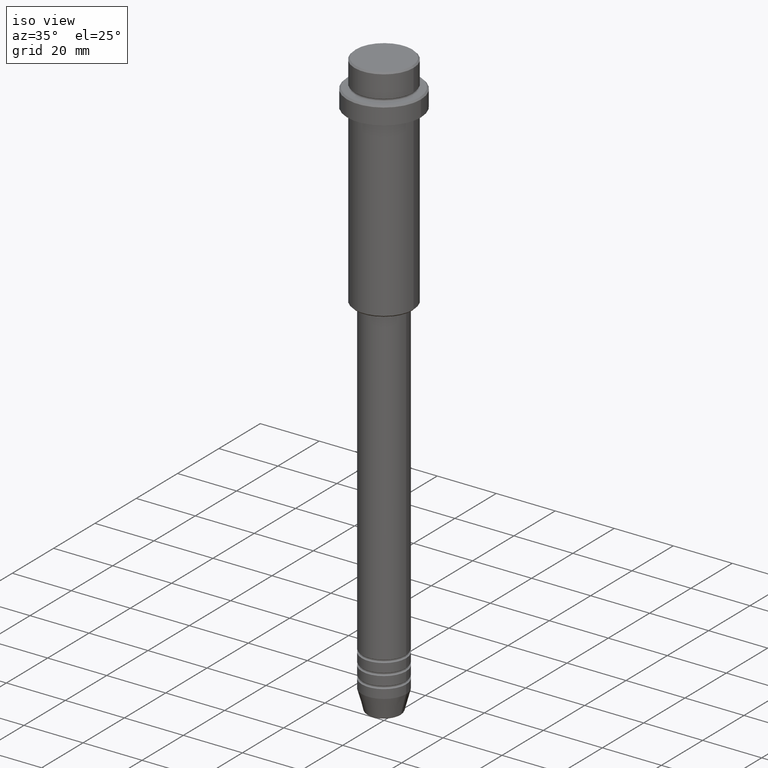
[diagram: clean part render]
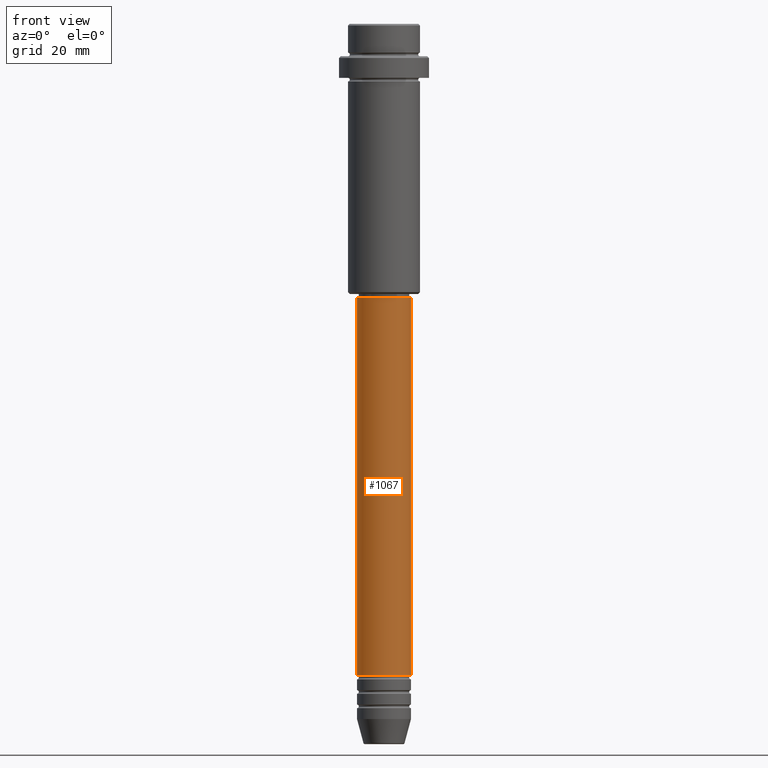
[diagram: tour spotlight — one face highlighted and labeled with its STEP entity id]
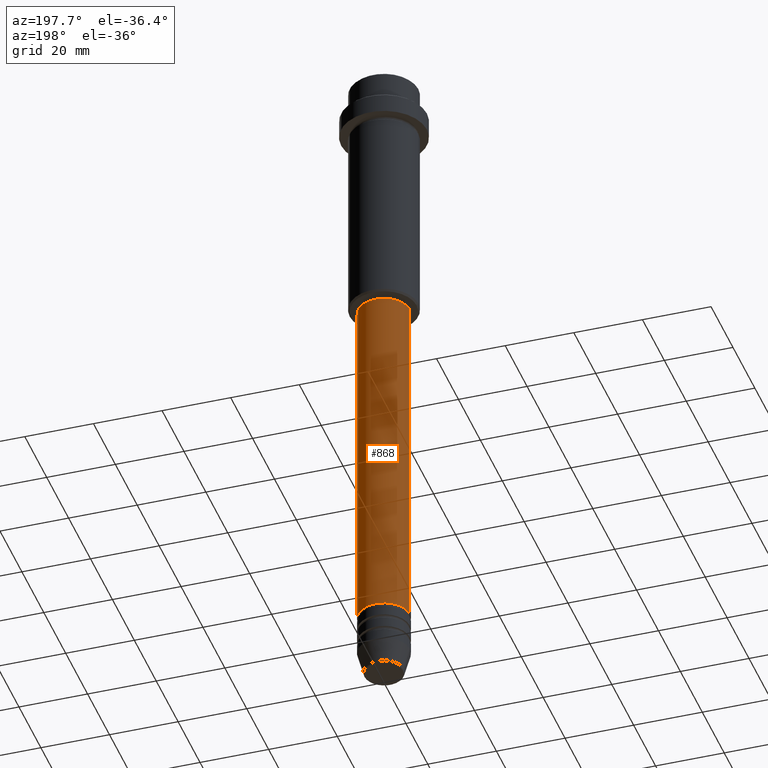
[diagram: tour spotlight — one face highlighted and labeled with its STEP entity id]
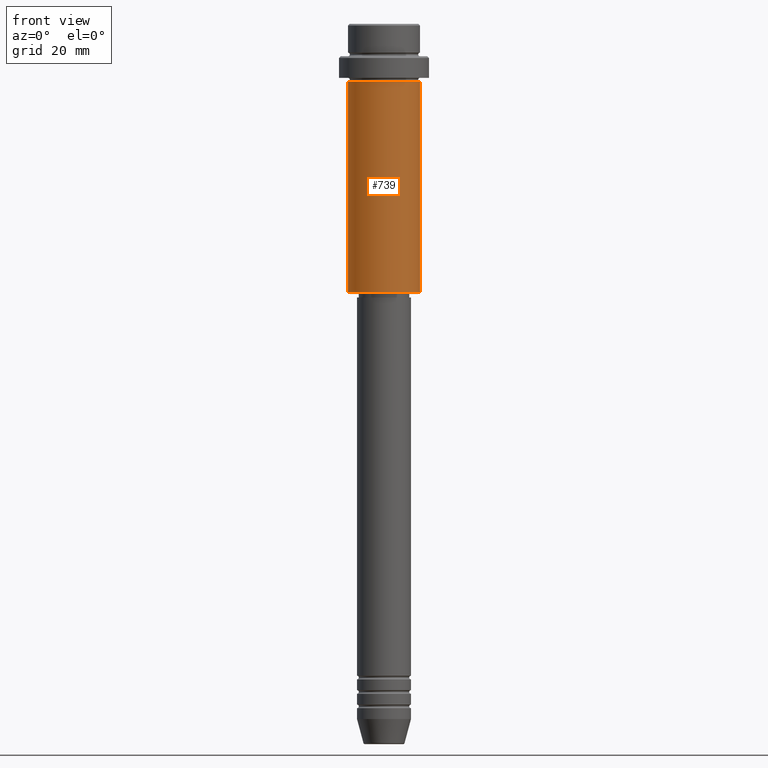
[diagram: tour spotlight — one face highlighted and labeled with its STEP entity id]
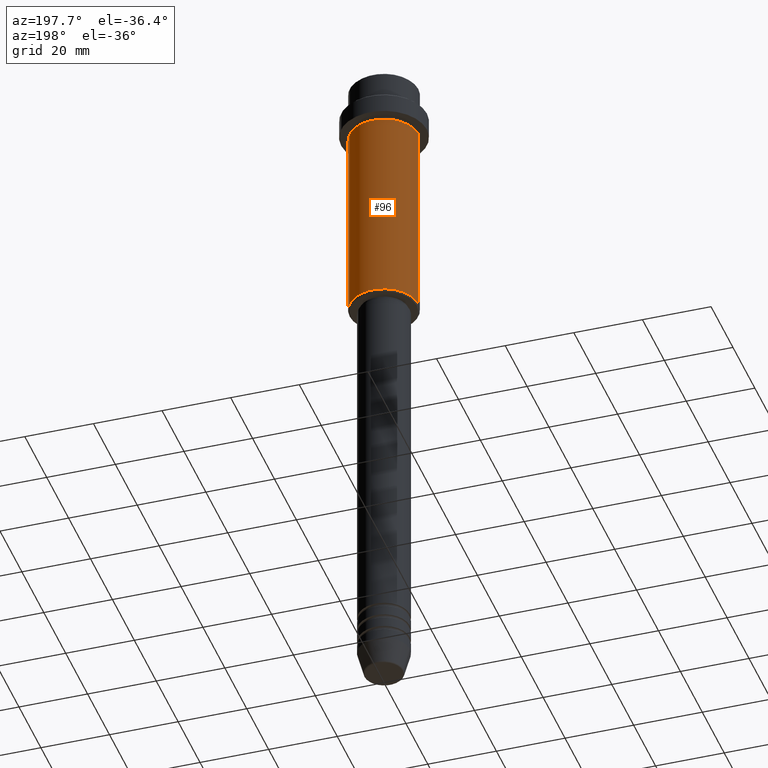
[diagram: tour spotlight — one face highlighted and labeled with its STEP entity id]
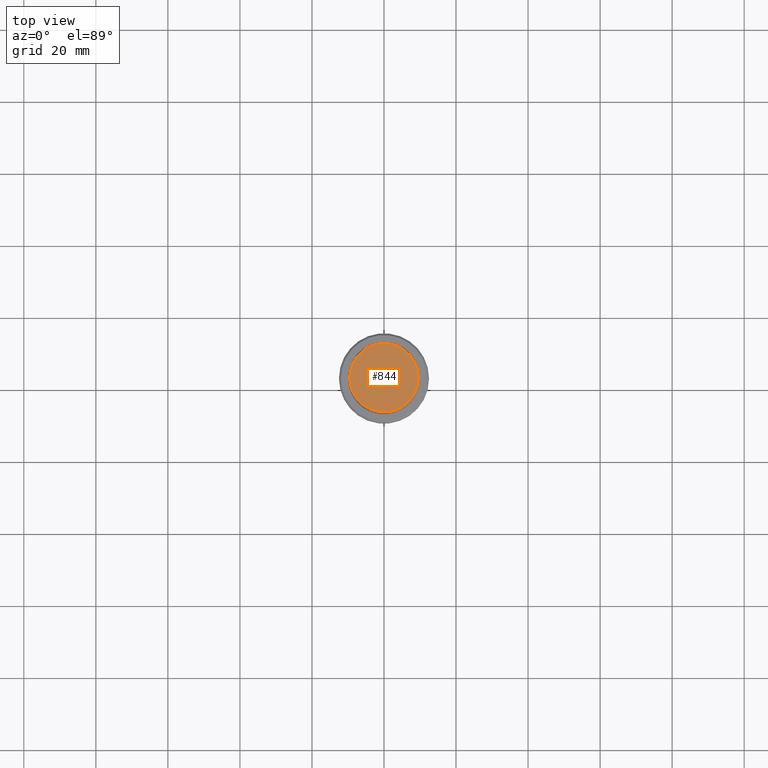
[diagram: tour spotlight — one face highlighted and labeled with its STEP entity id]
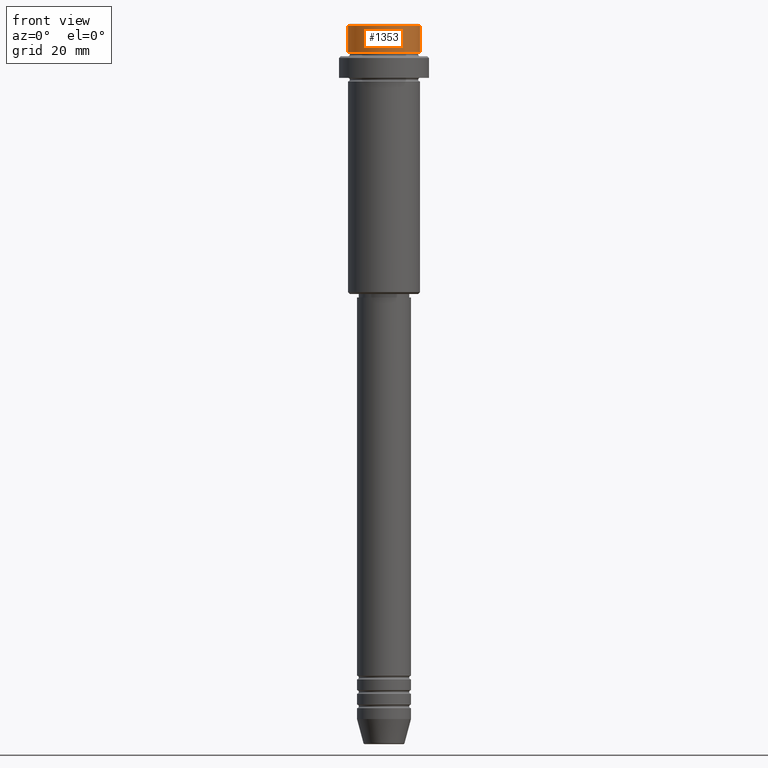
[diagram: tour spotlight — one face highlighted and labeled with its STEP entity id]
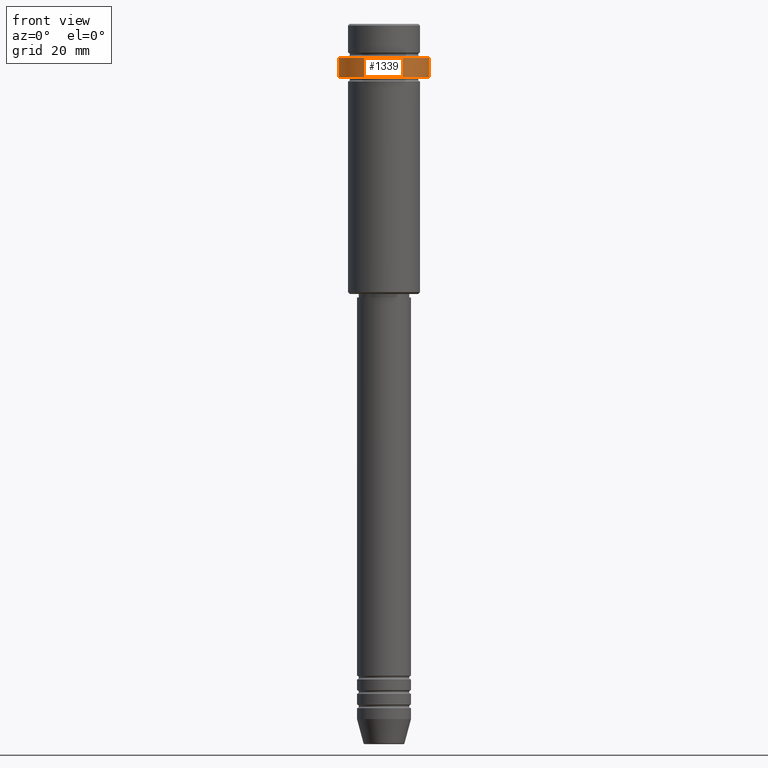
[diagram: tour spotlight — one face highlighted and labeled with its STEP entity id]
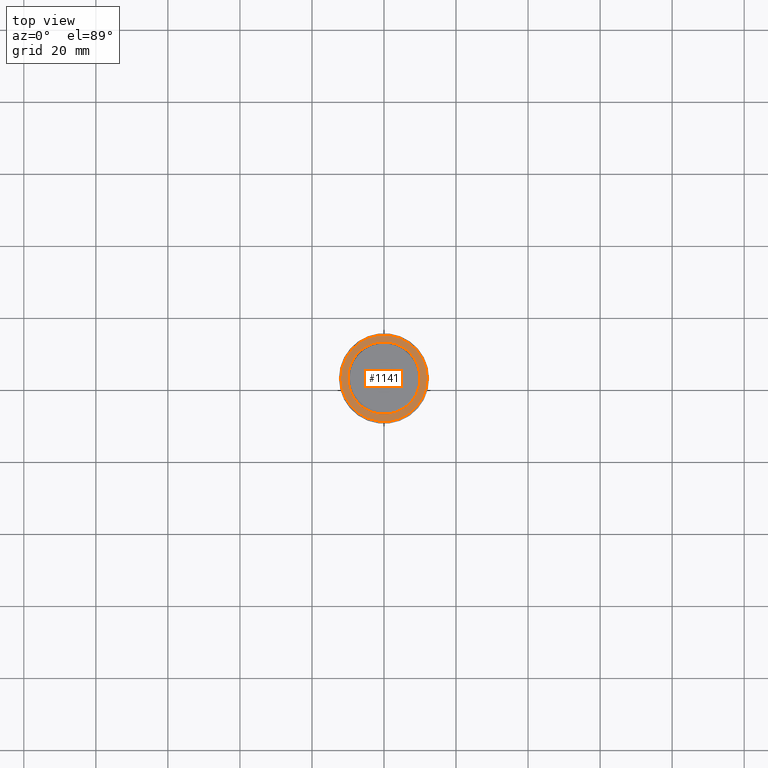
[diagram: tour spotlight — one face highlighted and labeled with its STEP entity id]
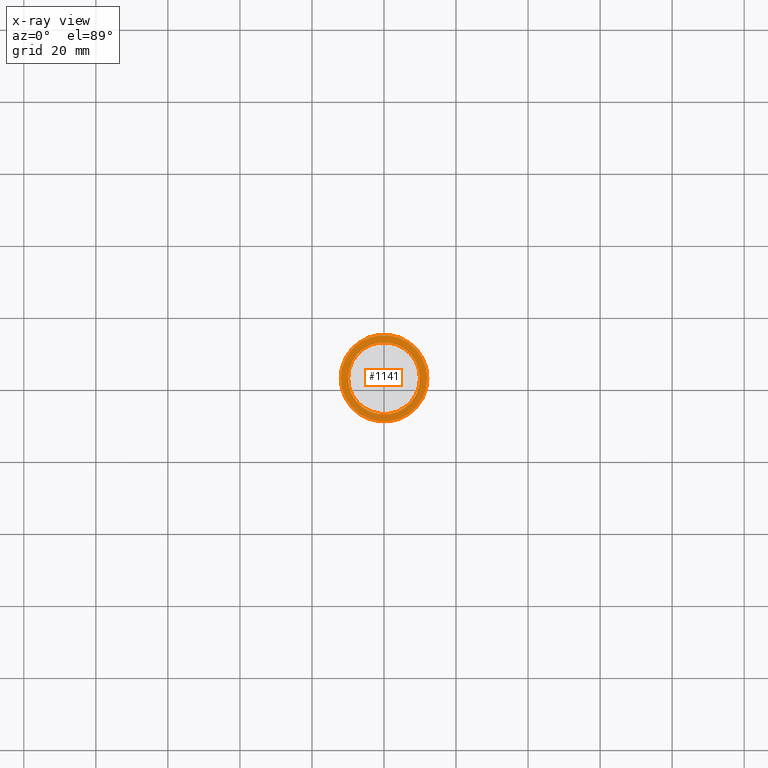
[diagram: x-ray of the same camera — body ghosted, this tour face saturated]
A machine part: a face-by-face anatomy tour. The part has 52 B-rep faces; the first image is the clean iso view, then the 8 largest visible faces are spotlighted one at a time (largest first), each with its STEP entity span.

Face 1 — front view, entity #1067. In plain terms, the highlighted cylindrical surface (edge-blend (fillet) strip) has radius 7.5 mm, axis along (-0, -0, 1).
Definition (entity closure, byte-faithful):
#12 = AXIS2_PLACEMENT_3D ( 'NONE', #493, #507, #928 ) ;
#13 = ORIENTED_EDGE ( 'NONE', *, *, #1210, .F. ) ;
#117 = VERTEX_POINT ( 'NONE', #1283 ) ;
#132 = EDGE_CURVE ( 'NONE', #1027, #117, #1355, .T. ) ;
#168 = CARTESIAN_POINT ( 'NONE',  ( 0.000000000000000000, 0.000000000000000000, -180.9999999999998863 ) ) ;
#178 = DIRECTION ( 'NONE',  ( 1.000000000000000000, 0.000000000000000000, 0.000000000000000000 ) ) ;
#197 = AXIS2_PLACEMENT_3D ( 'NONE', #427, #420, #1371 ) ;
#210 = LINE ( 'NONE', #325, #1247 ) ;
#220 = CARTESIAN_POINT ( 'NONE',  ( -7.500000000000000000, 9.184850993605147944E-16, -76.00000000000001421 ) ) ;
#288 = VERTEX_POINT ( 'NONE', #1304 ) ;
#312 = ORIENTED_EDGE ( 'NONE', *, *, #917, .F. ) ;
#325 = CARTESIAN_POINT ( 'NONE',  ( -7.500000000000000000, 9.184850993605147944E-16, 0.000000000000000000 ) ) ;
#345 = CARTESIAN_POINT ( 'NONE',  ( 7.500000000000000000, 0.000000000000000000, 0.000000000000000000 ) ) ;
#347 = VERTEX_POINT ( 'NONE', #220 ) ;
#420 = DIRECTION ( 'NONE',  ( -0.000000000000000000, -0.000000000000000000, 1.000000000000000000 ) ) ;
#427 = CARTESIAN_POINT ( 'NONE',  ( 0.000000000000000000, 0.000000000000000000, 0.000000000000000000 ) ) ;
#436 = LINE ( 'NONE', #345, #1130 ) ;
#493 = CARTESIAN_POINT ( 'NONE',  ( 0.000000000000000000, 0.000000000000000000, -76.00000000000001421 ) ) ;
#507 = DIRECTION ( 'NONE',  ( -0.000000000000000000, -0.000000000000000000, 1.000000000000000000 ) ) ;
#613 = FACE_OUTER_BOUND ( 'NONE', #1351, .T. ) ;
#716 = AXIS2_PLACEMENT_3D ( 'NONE', #168, #1154, #178 ) ;
#867 = DIRECTION ( 'NONE',  ( -0.000000000000000000, -0.000000000000000000, 1.000000000000000000 ) ) ;
#881 = CIRCLE ( 'NONE', #12, 7.500000000000000000 ) ;
#898 = ORIENTED_EDGE ( 'NONE', *, *, #132, .T. ) ;
#917 = EDGE_CURVE ( 'NONE', #347, #288, #881, .T. ) ;
#928 = DIRECTION ( 'NONE',  ( 1.000000000000000000, 0.000000000000000000, 0.000000000000000000 ) ) ;
#937 = CYLINDRICAL_SURFACE ( 'NONE', #197, 7.500000000000000000 ) ;
#961 = CARTESIAN_POINT ( 'NONE',  ( -7.500000000000000000, 9.184850993605147944E-16, -180.9999999999998863 ) ) ;
#1027 = VERTEX_POINT ( 'NONE', #961 ) ;
#1067 = ADVANCED_FACE ( 'NONE', ( #613 ), #937, .T. ) ;
#1130 = VECTOR ( 'NONE', #867, 1000.000000000000000 ) ;
#1154 = DIRECTION ( 'NONE',  ( -0.000000000000000000, -0.000000000000000000, 1.000000000000000000 ) ) ;
#1164 = EDGE_CURVE ( 'NONE', #117, #288, #436, .T. ) ;
#1210 = EDGE_CURVE ( 'NONE', #1027, #347, #210, .T. ) ;
#1239 = ORIENTED_EDGE ( 'NONE', *, *, #1164, .T. ) ;
#1247 = VECTOR ( 'NONE', #1296, 1000.000000000000000 ) ;
#1283 = CARTESIAN_POINT ( 'NONE',  ( 7.500000000000000000, 0.000000000000000000, -180.9999999999998863 ) ) ;
#1296 = DIRECTION ( 'NONE',  ( -0.000000000000000000, -0.000000000000000000, 1.000000000000000000 ) ) ;
#1304 = CARTESIAN_POINT ( 'NONE',  ( 7.500000000000000000, 0.000000000000000000, -76.00000000000001421 ) ) ;
#1351 = EDGE_LOOP ( 'NONE', ( #13, #898, #1239, #312 ) ) ;
#1355 = CIRCLE ( 'NONE', #716, 7.500000000000000000 ) ;
#1371 = DIRECTION ( 'NONE',  ( 1.000000000000000000, 0.000000000000000000, 0.000000000000000000 ) ) ;

Face 2 — auxiliary view, entity #868. In plain terms, the highlighted cylindrical surface (edge-blend (fillet) strip) has radius 7.5 mm, axis along (-0, -0, 1).
Definition (entity closure, byte-faithful):
#24 = ORIENTED_EDGE ( 'NONE', *, *, #1210, .T. ) ;
#117 = VERTEX_POINT ( 'NONE', #1283 ) ;
#160 = FACE_OUTER_BOUND ( 'NONE', #333, .T. ) ;
#174 = CARTESIAN_POINT ( 'NONE',  ( 0.000000000000000000, 0.000000000000000000, -180.9999999999998863 ) ) ;
#210 = LINE ( 'NONE', #325, #1247 ) ;
#220 = CARTESIAN_POINT ( 'NONE',  ( -7.500000000000000000, 9.184850993605147944E-16, -76.00000000000001421 ) ) ;
#234 = ORIENTED_EDGE ( 'NONE', *, *, #1164, .F. ) ;
#236 = DIRECTION ( 'NONE',  ( -0.000000000000000000, -0.000000000000000000, 1.000000000000000000 ) ) ;
#288 = VERTEX_POINT ( 'NONE', #1304 ) ;
#325 = CARTESIAN_POINT ( 'NONE',  ( -7.500000000000000000, 9.184850993605147944E-16, 0.000000000000000000 ) ) ;
#333 = EDGE_LOOP ( 'NONE', ( #818, #24, #1021, #234 ) ) ;
#345 = CARTESIAN_POINT ( 'NONE',  ( 7.500000000000000000, 0.000000000000000000, 0.000000000000000000 ) ) ;
#347 = VERTEX_POINT ( 'NONE', #220 ) ;
#436 = LINE ( 'NONE', #345, #1130 ) ;
#464 = DIRECTION ( 'NONE',  ( 1.000000000000000000, 0.000000000000000000, 0.000000000000000000 ) ) ;
#491 = AXIS2_PLACEMENT_3D ( 'NONE', #1214, #236, #966 ) ;
#546 = EDGE_CURVE ( 'NONE', #117, #1027, #809, .T. ) ;
#601 = CIRCLE ( 'NONE', #491, 7.500000000000000000 ) ;
#605 = DIRECTION ( 'NONE',  ( 1.000000000000000000, 0.000000000000000000, 0.000000000000000000 ) ) ;
#679 = EDGE_CURVE ( 'NONE', #288, #347, #601, .T. ) ;
#728 = DIRECTION ( 'NONE',  ( -0.000000000000000000, -0.000000000000000000, 1.000000000000000000 ) ) ;
#782 = DIRECTION ( 'NONE',  ( -0.000000000000000000, -0.000000000000000000, 1.000000000000000000 ) ) ;
#809 = CIRCLE ( 'NONE', #1017, 7.500000000000000000 ) ;
#818 = ORIENTED_EDGE ( 'NONE', *, *, #546, .T. ) ;
#867 = DIRECTION ( 'NONE',  ( -0.000000000000000000, -0.000000000000000000, 1.000000000000000000 ) ) ;
#868 = ADVANCED_FACE ( 'NONE', ( #160 ), #1328, .T. ) ;
#903 = AXIS2_PLACEMENT_3D ( 'NONE', #1012, #782, #464 ) ;
#961 = CARTESIAN_POINT ( 'NONE',  ( -7.500000000000000000, 9.184850993605147944E-16, -180.9999999999998863 ) ) ;
#966 = DIRECTION ( 'NONE',  ( 1.000000000000000000, 0.000000000000000000, 0.000000000000000000 ) ) ;
#1012 = CARTESIAN_POINT ( 'NONE',  ( 0.000000000000000000, 0.000000000000000000, 0.000000000000000000 ) ) ;
#1017 = AXIS2_PLACEMENT_3D ( 'NONE', #174, #728, #605 ) ;
#1021 = ORIENTED_EDGE ( 'NONE', *, *, #679, .F. ) ;
#1027 = VERTEX_POINT ( 'NONE', #961 ) ;
#1130 = VECTOR ( 'NONE', #867, 1000.000000000000000 ) ;
#1164 = EDGE_CURVE ( 'NONE', #117, #288, #436, .T. ) ;
#1210 = EDGE_CURVE ( 'NONE', #1027, #347, #210, .T. ) ;
#1214 = CARTESIAN_POINT ( 'NONE',  ( 0.000000000000000000, 0.000000000000000000, -76.00000000000001421 ) ) ;
#1247 = VECTOR ( 'NONE', #1296, 1000.000000000000000 ) ;
#1283 = CARTESIAN_POINT ( 'NONE',  ( 7.500000000000000000, 0.000000000000000000, -180.9999999999998863 ) ) ;
#1296 = DIRECTION ( 'NONE',  ( -0.000000000000000000, -0.000000000000000000, 1.000000000000000000 ) ) ;
#1304 = CARTESIAN_POINT ( 'NONE',  ( 7.500000000000000000, 0.000000000000000000, -76.00000000000001421 ) ) ;
#1328 = CYLINDRICAL_SURFACE ( 'NONE', #903, 7.500000000000000000 ) ;

Face 3 — front view, entity #739. In plain terms, the highlighted cylindrical surface (edge-blend (fillet) strip) has radius 10 mm, axis along (-0, -0, 1).
Definition (entity closure, byte-faithful):
#7 = CIRCLE ( 'NONE', #121, 9.999999999999998224 ) ;
#14 = VECTOR ( 'NONE', #1013, 1000.000000000000000 ) ;
#121 = AXIS2_PLACEMENT_3D ( 'NONE', #962, #1192, #1198 ) ;
#142 = FACE_OUTER_BOUND ( 'NONE', #1228, .T. ) ;
#166 = VERTEX_POINT ( 'NONE', #956 ) ;
#239 = EDGE_CURVE ( 'NONE', #582, #166, #7, .T. ) ;
#244 = AXIS2_PLACEMENT_3D ( 'NONE', #367, #674, #815 ) ;
#297 = EDGE_CURVE ( 'NONE', #886, #1249, #784, .T. ) ;
#344 = CARTESIAN_POINT ( 'NONE',  ( -9.999999999999998224, 1.224646799147353059E-15, -16.00000000000000000 ) ) ;
#367 = CARTESIAN_POINT ( 'NONE',  ( 0.000000000000000000, 0.000000000000000000, 0.000000000000000000 ) ) ;
#453 = DIRECTION ( 'NONE',  ( -0.000000000000000000, -0.000000000000000000, 1.000000000000000000 ) ) ;
#475 = CYLINDRICAL_SURFACE ( 'NONE', #244, 9.999999999999998224 ) ;
#506 = ORIENTED_EDGE ( 'NONE', *, *, #510, .F. ) ;
#510 = EDGE_CURVE ( 'NONE', #886, #582, #929, .T. ) ;
#537 = AXIS2_PLACEMENT_3D ( 'NONE', #1074, #453, #775 ) ;
#565 = CARTESIAN_POINT ( 'NONE',  ( -9.999999999999998224, 1.224646799147353059E-15, -74.50000000000001421 ) ) ;
#582 = VERTEX_POINT ( 'NONE', #344 ) ;
#674 = DIRECTION ( 'NONE',  ( -0.000000000000000000, -0.000000000000000000, 1.000000000000000000 ) ) ;
#675 = LINE ( 'NONE', #1113, #14 ) ;
#719 = VECTOR ( 'NONE', #1275, 1000.000000000000000 ) ;
#739 = ADVANCED_FACE ( 'NONE', ( #142 ), #475, .T. ) ;
#775 = DIRECTION ( 'NONE',  ( -1.000000000000000000, 0.000000000000000000, 0.000000000000000000 ) ) ;
#784 = CIRCLE ( 'NONE', #537, 9.999999999999998224 ) ;
#815 = DIRECTION ( 'NONE',  ( 1.000000000000000000, 0.000000000000000000, 0.000000000000000000 ) ) ;
#837 = CARTESIAN_POINT ( 'NONE',  ( -9.999999999999998224, 1.224646799147353059E-15, 0.000000000000000000 ) ) ;
#856 = ORIENTED_EDGE ( 'NONE', *, *, #297, .T. ) ;
#886 = VERTEX_POINT ( 'NONE', #565 ) ;
#929 = LINE ( 'NONE', #837, #719 ) ;
#956 = CARTESIAN_POINT ( 'NONE',  ( 9.999999999999998224, 0.000000000000000000, -16.00000000000000000 ) ) ;
#962 = CARTESIAN_POINT ( 'NONE',  ( 0.000000000000000000, 0.000000000000000000, -16.00000000000000000 ) ) ;
#1011 = ORIENTED_EDGE ( 'NONE', *, *, #239, .F. ) ;
#1013 = DIRECTION ( 'NONE',  ( -0.000000000000000000, -0.000000000000000000, 1.000000000000000000 ) ) ;
#1074 = CARTESIAN_POINT ( 'NONE',  ( 0.000000000000000000, 0.000000000000000000, -74.50000000000001421 ) ) ;
#1101 = ORIENTED_EDGE ( 'NONE', *, *, #1279, .T. ) ;
#1113 = CARTESIAN_POINT ( 'NONE',  ( 9.999999999999998224, 0.000000000000000000, 0.000000000000000000 ) ) ;
#1192 = DIRECTION ( 'NONE',  ( -0.000000000000000000, -0.000000000000000000, 1.000000000000000000 ) ) ;
#1198 = DIRECTION ( 'NONE',  ( 1.000000000000000000, 0.000000000000000000, 0.000000000000000000 ) ) ;
#1228 = EDGE_LOOP ( 'NONE', ( #506, #856, #1101, #1011 ) ) ;
#1249 = VERTEX_POINT ( 'NONE', #1307 ) ;
#1275 = DIRECTION ( 'NONE',  ( -0.000000000000000000, -0.000000000000000000, 1.000000000000000000 ) ) ;
#1279 = EDGE_CURVE ( 'NONE', #1249, #166, #675, .T. ) ;
#1307 = CARTESIAN_POINT ( 'NONE',  ( 9.999999999999998224, 0.000000000000000000, -74.50000000000001421 ) ) ;

Face 4 — auxiliary view, entity #96. In plain terms, the highlighted cylindrical surface (edge-blend (fillet) strip) has radius 10 mm, axis along (-0, -0, 1).
Definition (entity closure, byte-faithful):
#14 = VECTOR ( 'NONE', #1013, 1000.000000000000000 ) ;
#31 = AXIS2_PLACEMENT_3D ( 'NONE', #599, #1373, #1367 ) ;
#96 = ADVANCED_FACE ( 'NONE', ( #717 ), #498, .T. ) ;
#141 = EDGE_CURVE ( 'NONE', #1249, #886, #877, .T. ) ;
#166 = VERTEX_POINT ( 'NONE', #956 ) ;
#205 = ORIENTED_EDGE ( 'NONE', *, *, #510, .T. ) ;
#228 = CARTESIAN_POINT ( 'NONE',  ( 0.000000000000000000, 0.000000000000000000, -16.00000000000000000 ) ) ;
#271 = EDGE_CURVE ( 'NONE', #166, #582, #578, .T. ) ;
#344 = CARTESIAN_POINT ( 'NONE',  ( -9.999999999999998224, 1.224646799147353059E-15, -16.00000000000000000 ) ) ;
#366 = ORIENTED_EDGE ( 'NONE', *, *, #141, .T. ) ;
#498 = CYLINDRICAL_SURFACE ( 'NONE', #762, 9.999999999999998224 ) ;
#510 = EDGE_CURVE ( 'NONE', #886, #582, #929, .T. ) ;
#548 = DIRECTION ( 'NONE',  ( -0.000000000000000000, -0.000000000000000000, 1.000000000000000000 ) ) ;
#565 = CARTESIAN_POINT ( 'NONE',  ( -9.999999999999998224, 1.224646799147353059E-15, -74.50000000000001421 ) ) ;
#578 = CIRCLE ( 'NONE', #1150, 9.999999999999998224 ) ;
#582 = VERTEX_POINT ( 'NONE', #344 ) ;
#599 = CARTESIAN_POINT ( 'NONE',  ( 0.000000000000000000, 0.000000000000000000, -74.50000000000001421 ) ) ;
#607 = CARTESIAN_POINT ( 'NONE',  ( 0.000000000000000000, 0.000000000000000000, 0.000000000000000000 ) ) ;
#631 = EDGE_LOOP ( 'NONE', ( #366, #205, #938, #926 ) ) ;
#675 = LINE ( 'NONE', #1113, #14 ) ;
#710 = DIRECTION ( 'NONE',  ( 1.000000000000000000, 0.000000000000000000, 0.000000000000000000 ) ) ;
#717 = FACE_OUTER_BOUND ( 'NONE', #631, .T. ) ;
#719 = VECTOR ( 'NONE', #1275, 1000.000000000000000 ) ;
#762 = AXIS2_PLACEMENT_3D ( 'NONE', #607, #845, #710 ) ;
#837 = CARTESIAN_POINT ( 'NONE',  ( -9.999999999999998224, 1.224646799147353059E-15, 0.000000000000000000 ) ) ;
#845 = DIRECTION ( 'NONE',  ( -0.000000000000000000, -0.000000000000000000, 1.000000000000000000 ) ) ;
#877 = CIRCLE ( 'NONE', #31, 9.999999999999998224 ) ;
#886 = VERTEX_POINT ( 'NONE', #565 ) ;
#926 = ORIENTED_EDGE ( 'NONE', *, *, #1279, .F. ) ;
#929 = LINE ( 'NONE', #837, #719 ) ;
#938 = ORIENTED_EDGE ( 'NONE', *, *, #271, .F. ) ;
#956 = CARTESIAN_POINT ( 'NONE',  ( 9.999999999999998224, 0.000000000000000000, -16.00000000000000000 ) ) ;
#978 = DIRECTION ( 'NONE',  ( 1.000000000000000000, 0.000000000000000000, 0.000000000000000000 ) ) ;
#1013 = DIRECTION ( 'NONE',  ( -0.000000000000000000, -0.000000000000000000, 1.000000000000000000 ) ) ;
#1113 = CARTESIAN_POINT ( 'NONE',  ( 9.999999999999998224, 0.000000000000000000, 0.000000000000000000 ) ) ;
#1150 = AXIS2_PLACEMENT_3D ( 'NONE', #228, #548, #978 ) ;
#1249 = VERTEX_POINT ( 'NONE', #1307 ) ;
#1275 = DIRECTION ( 'NONE',  ( -0.000000000000000000, -0.000000000000000000, 1.000000000000000000 ) ) ;
#1279 = EDGE_CURVE ( 'NONE', #1249, #166, #675, .T. ) ;
#1307 = CARTESIAN_POINT ( 'NONE',  ( 9.999999999999998224, 0.000000000000000000, -74.50000000000001421 ) ) ;
#1367 = DIRECTION ( 'NONE',  ( -1.000000000000000000, 0.000000000000000000, 0.000000000000000000 ) ) ;
#1373 = DIRECTION ( 'NONE',  ( -0.000000000000000000, -0.000000000000000000, 1.000000000000000000 ) ) ;

Face 5 — top view, entity #844. In plain terms, the highlighted planar face has unit normal (0, -0, 1).
Definition (entity closure, byte-faithful):
#16 = DIRECTION ( 'NONE',  ( 1.000000000000000000, 0.000000000000000000, 0.000000000000000000 ) ) ;
#26 = FACE_OUTER_BOUND ( 'NONE', #555, .T. ) ;
#47 = DIRECTION ( 'NONE',  ( -0.000000000000000000, -0.000000000000000000, 1.000000000000000000 ) ) ;
#127 = DIRECTION ( 'NONE',  ( 1.000000000000000000, 0.000000000000000000, 0.000000000000000000 ) ) ;
#200 = VERTEX_POINT ( 'NONE', #1189 ) ;
#237 = DIRECTION ( 'NONE',  ( -0.000000000000000000, -0.000000000000000000, 1.000000000000000000 ) ) ;
#269 = DIRECTION ( 'NONE',  ( 0.000000000000000000, -0.000000000000000000, 1.000000000000000000 ) ) ;
#295 = AXIS2_PLACEMENT_3D ( 'NONE', #987, #237, #16 ) ;
#555 = EDGE_LOOP ( 'NONE', ( #935, #673 ) ) ;
#590 = CARTESIAN_POINT ( 'NONE',  ( 0.000000000000000000, 0.000000000000000000, 0.000000000000000000 ) ) ;
#602 = CARTESIAN_POINT ( 'NONE',  ( -9.500000000000008882, 0.000000000000000000, 0.000000000000000000 ) ) ;
#673 = ORIENTED_EDGE ( 'NONE', *, *, #1153, .T. ) ;
#844 = ADVANCED_FACE ( 'NONE', ( #26 ), #907, .T. ) ;
#859 = EDGE_CURVE ( 'NONE', #914, #200, #1271, .T. ) ;
#907 = PLANE ( 'NONE',  #950 ) ;
#914 = VERTEX_POINT ( 'NONE', #602 ) ;
#921 = DIRECTION ( 'NONE',  ( 1.000000000000000000, 0.000000000000000000, 0.000000000000000000 ) ) ;
#935 = ORIENTED_EDGE ( 'NONE', *, *, #859, .T. ) ;
#950 = AXIS2_PLACEMENT_3D ( 'NONE', #590, #269, #921 ) ;
#987 = CARTESIAN_POINT ( 'NONE',  ( 0.000000000000000000, 0.000000000000000000, 0.000000000000000000 ) ) ;
#1153 = EDGE_CURVE ( 'NONE', #200, #914, #1179, .T. ) ;
#1179 = CIRCLE ( 'NONE', #295, 9.500000000000008882 ) ;
#1189 = CARTESIAN_POINT ( 'NONE',  ( 9.500000000000008882, 1.194030629168669864E-15, 0.000000000000000000 ) ) ;
#1271 = CIRCLE ( 'NONE', #1358, 9.500000000000008882 ) ;
#1343 = CARTESIAN_POINT ( 'NONE',  ( 0.000000000000000000, 0.000000000000000000, 0.000000000000000000 ) ) ;
#1358 = AXIS2_PLACEMENT_3D ( 'NONE', #1343, #47, #127 ) ;

Face 6 — front view, entity #1353. In plain terms, the highlighted cylindrical surface (edge-blend (fillet) strip) has radius 10 mm, axis along (-0, -0, 1).
Definition (entity closure, byte-faithful):
#1 = CARTESIAN_POINT ( 'NONE',  ( 9.999999999999998224, 0.000000000000000000, -7.999999999999998224 ) ) ;
#37 = CIRCLE ( 'NONE', #995, 9.999999999999998224 ) ;
#41 = VERTEX_POINT ( 'NONE', #359 ) ;
#56 = FACE_OUTER_BOUND ( 'NONE', #1069, .T. ) ;
#66 = DIRECTION ( 'NONE',  ( 1.000000000000000000, 0.000000000000000000, 0.000000000000000000 ) ) ;
#80 = AXIS2_PLACEMENT_3D ( 'NONE', #1387, #960, #624 ) ;
#90 = EDGE_CURVE ( 'NONE', #989, #821, #1256, .T. ) ;
#195 = DIRECTION ( 'NONE',  ( 0.000000000000000000, 0.000000000000000000, -1.000000000000000000 ) ) ;
#216 = VECTOR ( 'NONE', #280, 1000.000000000000000 ) ;
#218 = CIRCLE ( 'NONE', #80, 9.999999999999998224 ) ;
#246 = VECTOR ( 'NONE', #262, 1000.000000000000000 ) ;
#262 = DIRECTION ( 'NONE',  ( -0.000000000000000000, -0.000000000000000000, 1.000000000000000000 ) ) ;
#280 = DIRECTION ( 'NONE',  ( -0.000000000000000000, -0.000000000000000000, 1.000000000000000000 ) ) ;
#328 = ORIENTED_EDGE ( 'NONE', *, *, #1262, .T. ) ;
#359 = CARTESIAN_POINT ( 'NONE',  ( 9.999999999999998224, 0.000000000000000000, -0.4999999999999970024 ) ) ;
#390 = DIRECTION ( 'NONE',  ( 1.000000000000000000, 0.000000000000000000, 0.000000000000000000 ) ) ;
#433 = EDGE_CURVE ( 'NONE', #989, #1207, #218, .T. ) ;
#504 = CARTESIAN_POINT ( 'NONE',  ( -9.999999999999998224, 1.224646799147353059E-15, -7.999999999999998224 ) ) ;
#511 = CARTESIAN_POINT ( 'NONE',  ( -9.999999999999998224, 1.224646799147353059E-15, 0.000000000000000000 ) ) ;
#533 = ORIENTED_EDGE ( 'NONE', *, *, #433, .T. ) ;
#551 = LINE ( 'NONE', #1329, #246 ) ;
#618 = CARTESIAN_POINT ( 'NONE',  ( 0.000000000000000000, 0.000000000000000000, -0.4999999999999970024 ) ) ;
#624 = DIRECTION ( 'NONE',  ( 1.000000000000000000, 0.000000000000000000, 0.000000000000000000 ) ) ;
#677 = DIRECTION ( 'NONE',  ( -0.000000000000000000, -0.000000000000000000, 1.000000000000000000 ) ) ;
#746 = AXIS2_PLACEMENT_3D ( 'NONE', #807, #677, #390 ) ;
#807 = CARTESIAN_POINT ( 'NONE',  ( 0.000000000000000000, 0.000000000000000000, 0.000000000000000000 ) ) ;
#821 = VERTEX_POINT ( 'NONE', #1103 ) ;
#960 = DIRECTION ( 'NONE',  ( -0.000000000000000000, -0.000000000000000000, 1.000000000000000000 ) ) ;
#989 = VERTEX_POINT ( 'NONE', #504 ) ;
#995 = AXIS2_PLACEMENT_3D ( 'NONE', #618, #195, #66 ) ;
#1049 = EDGE_CURVE ( 'NONE', #41, #821, #37, .T. ) ;
#1069 = EDGE_LOOP ( 'NONE', ( #1143, #533, #328, #1089 ) ) ;
#1089 = ORIENTED_EDGE ( 'NONE', *, *, #1049, .T. ) ;
#1103 = CARTESIAN_POINT ( 'NONE',  ( -9.999999999999998224, 1.224646799147353059E-15, -0.4999999999999970024 ) ) ;
#1140 = CYLINDRICAL_SURFACE ( 'NONE', #746, 9.999999999999998224 ) ;
#1143 = ORIENTED_EDGE ( 'NONE', *, *, #90, .F. ) ;
#1207 = VERTEX_POINT ( 'NONE', #1 ) ;
#1256 = LINE ( 'NONE', #511, #216 ) ;
#1262 = EDGE_CURVE ( 'NONE', #1207, #41, #551, .T. ) ;
#1329 = CARTESIAN_POINT ( 'NONE',  ( 9.999999999999998224, 0.000000000000000000, 0.000000000000000000 ) ) ;
#1353 = ADVANCED_FACE ( 'NONE', ( #56 ), #1140, .T. ) ;
#1387 = CARTESIAN_POINT ( 'NONE',  ( 0.000000000000000000, 0.000000000000000000, -7.999999999999998224 ) ) ;

Face 7 — front view, entity #1339. In plain terms, the highlighted cylindrical surface (partial cylindrical patch) has radius 12.5 mm, axis along (-0, -0, 1).
Definition (entity closure, byte-faithful):
#70 = VERTEX_POINT ( 'NONE', #947 ) ;
#91 = ORIENTED_EDGE ( 'NONE', *, *, #283, .T. ) ;
#184 = CARTESIAN_POINT ( 'NONE',  ( -12.50000000000000000, 1.530808498934191521E-15, -15.00000000000000000 ) ) ;
#223 = EDGE_CURVE ( 'NONE', #630, #70, #945, .T. ) ;
#270 = VECTOR ( 'NONE', #712, 1000.000000000000000 ) ;
#282 = CARTESIAN_POINT ( 'NONE',  ( -12.50000000000000000, 1.530808498934191521E-15, 0.000000000000000000 ) ) ;
#283 = EDGE_CURVE ( 'NONE', #1009, #798, #922, .T. ) ;
#316 = AXIS2_PLACEMENT_3D ( 'NONE', #1212, #875, #864 ) ;
#395 = LINE ( 'NONE', #826, #1246 ) ;
#441 = CARTESIAN_POINT ( 'NONE',  ( 12.50000000000000000, 0.000000000000000000, -9.500000000000005329 ) ) ;
#466 = DIRECTION ( 'NONE',  ( 1.000000000000000000, 0.000000000000000000, 0.000000000000000000 ) ) ;
#477 = DIRECTION ( 'NONE',  ( -0.000000000000000000, -0.000000000000000000, 1.000000000000000000 ) ) ;
#564 = ORIENTED_EDGE ( 'NONE', *, *, #223, .T. ) ;
#568 = ORIENTED_EDGE ( 'NONE', *, *, #932, .F. ) ;
#572 = EDGE_LOOP ( 'NONE', ( #568, #91, #918, #564 ) ) ;
#587 = FACE_OUTER_BOUND ( 'NONE', #572, .T. ) ;
#629 = DIRECTION ( 'NONE',  ( 1.000000000000000000, 0.000000000000000000, 0.000000000000000000 ) ) ;
#630 = VERTEX_POINT ( 'NONE', #441 ) ;
#712 = DIRECTION ( 'NONE',  ( -0.000000000000000000, -0.000000000000000000, 1.000000000000000000 ) ) ;
#798 = VERTEX_POINT ( 'NONE', #1124 ) ;
#826 = CARTESIAN_POINT ( 'NONE',  ( 12.50000000000000000, 0.000000000000000000, 0.000000000000000000 ) ) ;
#864 = DIRECTION ( 'NONE',  ( 1.000000000000000000, 0.000000000000000000, 0.000000000000000000 ) ) ;
#875 = DIRECTION ( 'NONE',  ( -0.000000000000000000, -0.000000000000000000, 1.000000000000000000 ) ) ;
#916 = CYLINDRICAL_SURFACE ( 'NONE', #953, 12.50000000000000000 ) ;
#918 = ORIENTED_EDGE ( 'NONE', *, *, #957, .T. ) ;
#922 = CIRCLE ( 'NONE', #316, 12.50000000000000000 ) ;
#932 = EDGE_CURVE ( 'NONE', #1009, #70, #1259, .T. ) ;
#945 = CIRCLE ( 'NONE', #969, 12.50000000000000000 ) ;
#947 = CARTESIAN_POINT ( 'NONE',  ( -12.50000000000000000, 1.530808498934191521E-15, -9.500000000000005329 ) ) ;
#953 = AXIS2_PLACEMENT_3D ( 'NONE', #1016, #477, #466 ) ;
#957 = EDGE_CURVE ( 'NONE', #798, #630, #395, .T. ) ;
#968 = CARTESIAN_POINT ( 'NONE',  ( 0.000000000000000000, 0.000000000000000000, -9.500000000000005329 ) ) ;
#969 = AXIS2_PLACEMENT_3D ( 'NONE', #968, #1405, #629 ) ;
#1009 = VERTEX_POINT ( 'NONE', #184 ) ;
#1016 = CARTESIAN_POINT ( 'NONE',  ( 0.000000000000000000, 0.000000000000000000, 0.000000000000000000 ) ) ;
#1124 = CARTESIAN_POINT ( 'NONE',  ( 12.50000000000000000, 0.000000000000000000, -15.00000000000000000 ) ) ;
#1212 = CARTESIAN_POINT ( 'NONE',  ( 0.000000000000000000, 0.000000000000000000, -15.00000000000000000 ) ) ;
#1246 = VECTOR ( 'NONE', #1265, 1000.000000000000000 ) ;
#1259 = LINE ( 'NONE', #282, #270 ) ;
#1265 = DIRECTION ( 'NONE',  ( -0.000000000000000000, -0.000000000000000000, 1.000000000000000000 ) ) ;
#1339 = ADVANCED_FACE ( 'NONE', ( #587 ), #916, .T. ) ;
#1405 = DIRECTION ( 'NONE',  ( 0.000000000000000000, 0.000000000000000000, -1.000000000000000000 ) ) ;

Face 8 — top view, entity #1141. An x-ray twin of the same camera follows (body ghosted, this face saturated) — the face is partly hidden behind the body. In plain terms, the highlighted planar face has unit normal (0, -0, 1).
Definition (entity closure, byte-faithful):
#71 = DIRECTION ( 'NONE',  ( 1.000000000000000000, 0.000000000000000000, 0.000000000000000000 ) ) ;
#110 = CARTESIAN_POINT ( 'NONE',  ( 0.000000000000000000, 9.499999999999992895, -9.000000000000000000 ) ) ;
#207 = DIRECTION ( 'NONE',  ( 1.000000000000000000, 0.000000000000000000, 0.000000000000000000 ) ) ;
#307 = EDGE_LOOP ( 'NONE', ( #913, #594 ) ) ;
#331 = EDGE_CURVE ( 'NONE', #1133, #919, #900, .T. ) ;
#339 = AXIS2_PLACEMENT_3D ( 'NONE', #1188, #655, #639 ) ;
#340 = DIRECTION ( 'NONE',  ( -0.000000000000000000, -0.000000000000000000, 1.000000000000000000 ) ) ;
#386 = ORIENTED_EDGE ( 'NONE', *, *, #331, .T. ) ;
#396 = CARTESIAN_POINT ( 'NONE',  ( 9.999999999999992895, 0.000000000000000000, -9.000000000000000000 ) ) ;
#430 = AXIS2_PLACEMENT_3D ( 'NONE', #110, #659, #1195 ) ;
#447 = AXIS2_PLACEMENT_3D ( 'NONE', #869, #340, #207 ) ;
#457 = DIRECTION ( 'NONE',  ( 1.000000000000000000, 0.000000000000000000, 0.000000000000000000 ) ) ;
#501 = VERTEX_POINT ( 'NONE', #396 ) ;
#556 = CARTESIAN_POINT ( 'NONE',  ( -9.999999999999992895, 1.224646799147352468E-15, -9.000000000000000000 ) ) ;
#566 = PLANE ( 'NONE',  #430 ) ;
#594 = ORIENTED_EDGE ( 'NONE', *, *, #1126, .T. ) ;
#623 = AXIS2_PLACEMENT_3D ( 'NONE', #1137, #707, #71 ) ;
#639 = DIRECTION ( 'NONE',  ( 1.000000000000000000, 0.000000000000000000, 0.000000000000000000 ) ) ;
#646 = FACE_OUTER_BOUND ( 'NONE', #1348, .T. ) ;
#655 = DIRECTION ( 'NONE',  ( 0.000000000000000000, 0.000000000000000000, -1.000000000000000000 ) ) ;
#659 = DIRECTION ( 'NONE',  ( 0.000000000000000000, -0.000000000000000000, 1.000000000000000000 ) ) ;
#707 = DIRECTION ( 'NONE',  ( -0.000000000000000000, -0.000000000000000000, 1.000000000000000000 ) ) ;
#711 = VERTEX_POINT ( 'NONE', #556 ) ;
#752 = ORIENTED_EDGE ( 'NONE', *, *, #896, .T. ) ;
#787 = CIRCLE ( 'NONE', #623, 12.00000000000001066 ) ;
#820 = CARTESIAN_POINT ( 'NONE',  ( -12.00000000000001066, 0.000000000000000000, -9.000000000000000000 ) ) ;
#836 = CIRCLE ( 'NONE', #339, 9.999999999999992895 ) ;
#869 = CARTESIAN_POINT ( 'NONE',  ( 0.000000000000000000, 0.000000000000000000, -9.000000000000000000 ) ) ;
#882 = CIRCLE ( 'NONE', #904, 9.999999999999992895 ) ;
#896 = EDGE_CURVE ( 'NONE', #919, #1133, #787, .T. ) ;
#900 = CIRCLE ( 'NONE', #447, 12.00000000000001066 ) ;
#904 = AXIS2_PLACEMENT_3D ( 'NONE', #1105, #982, #457 ) ;
#913 = ORIENTED_EDGE ( 'NONE', *, *, #1232, .T. ) ;
#919 = VERTEX_POINT ( 'NONE', #820 ) ;
#982 = DIRECTION ( 'NONE',  ( 0.000000000000000000, 0.000000000000000000, -1.000000000000000000 ) ) ;
#993 = FACE_BOUND ( 'NONE', #307, .T. ) ;
#1105 = CARTESIAN_POINT ( 'NONE',  ( 0.000000000000000000, 0.000000000000000000, -9.000000000000000000 ) ) ;
#1126 = EDGE_CURVE ( 'NONE', #711, #501, #882, .T. ) ;
#1133 = VERTEX_POINT ( 'NONE', #1412 ) ;
#1137 = CARTESIAN_POINT ( 'NONE',  ( 0.000000000000000000, 0.000000000000000000, -9.000000000000000000 ) ) ;
#1141 = ADVANCED_FACE ( 'NONE', ( #646, #993 ), #566, .T. ) ;
#1188 = CARTESIAN_POINT ( 'NONE',  ( 0.000000000000000000, 0.000000000000000000, -9.000000000000000000 ) ) ;
#1195 = DIRECTION ( 'NONE',  ( 1.000000000000000000, 0.000000000000000000, 0.000000000000000000 ) ) ;
#1232 = EDGE_CURVE ( 'NONE', #501, #711, #836, .T. ) ;
#1348 = EDGE_LOOP ( 'NONE', ( #752, #386 ) ) ;
#1412 = CARTESIAN_POINT ( 'NONE',  ( 12.00000000000001066, 1.500192328955508326E-15, -9.000000000000000000 ) ) ;